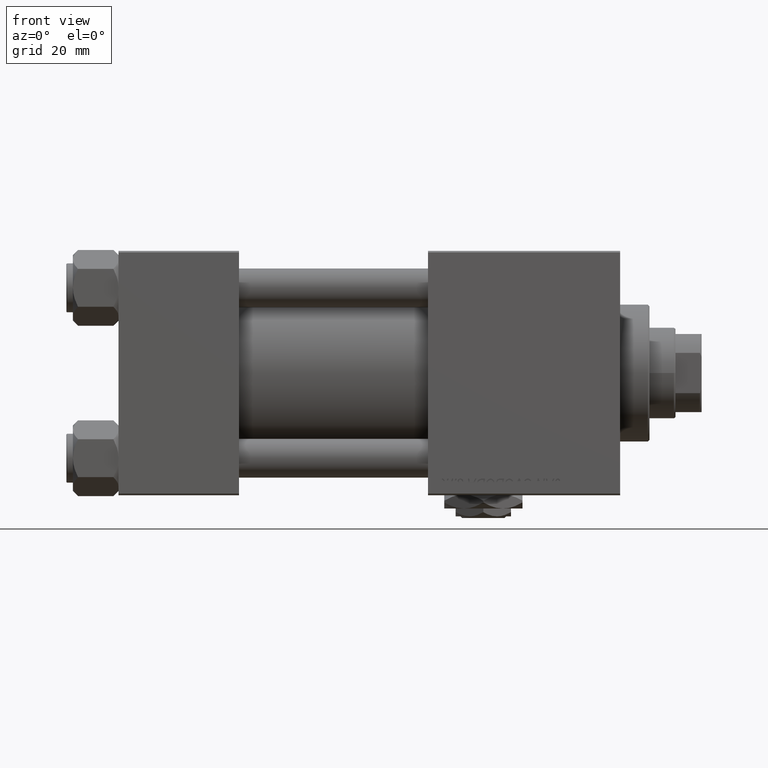
[diagram: clean part render]
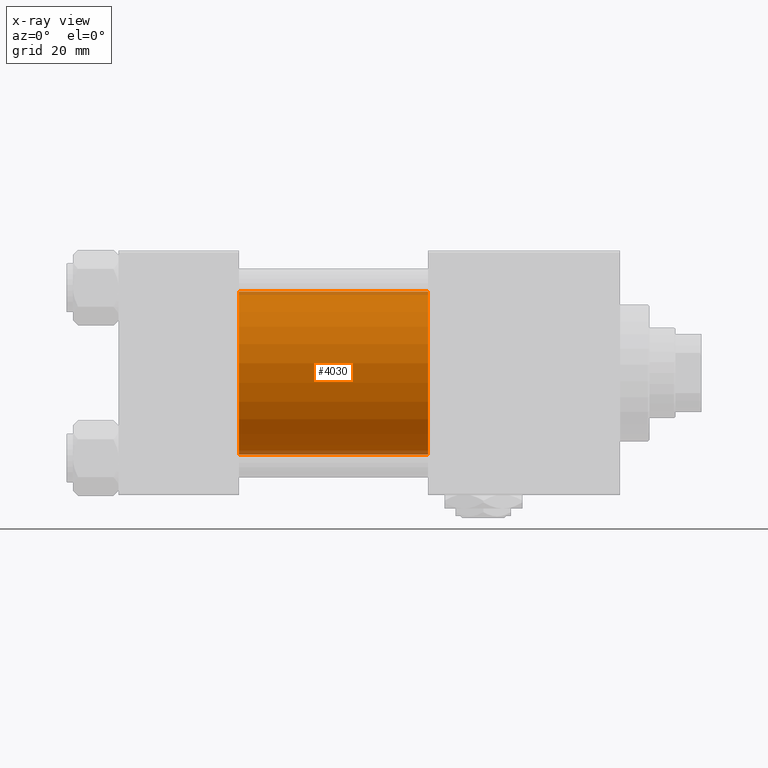
[diagram: x-ray — body ghosted, one internal face saturated and labeled with its STEP entity id]
A machine part, front view, then the same camera in x-ray: the body is ghosted and one INTERNAL B-rep face — a face not visible from any outside direction — is saturated and labeled: STEP entity #4030.
In plain terms, the highlighted cylindrical surface (partial cylindrical patch) has radius 25 mm, axis along (-1, -0, -0).
Its self-contained STEP definition (entity closure, byte-faithful):
#1020 = CARTESIAN_POINT ( 'NONE',  ( 95.00000000000000000, -2.602085213965210642E-15, 0.000000000000000000 ) ) ;
#1318 = DIRECTION ( 'NONE',  ( -1.000000000000000000, -0.000000000000000000, -0.000000000000000000 ) ) ;
#1733 = ORIENTED_EDGE ( 'NONE', *, *, #32622, .T. ) ;
#4030 = ADVANCED_FACE ( 'NONE', ( #48794 ), #17039, .F. ) ;
#4501 = VECTOR ( 'NONE', #27023, 1000.000000000000000 ) ;
#8416 = DIRECTION ( 'NONE',  ( 0.000000000000000000, 0.000000000000000000, -1.000000000000000000 ) ) ;
#8530 = EDGE_CURVE ( 'NONE', #40724, #27261, #9411, .T. ) ;
#8656 = DIRECTION ( 'NONE',  ( 0.000000000000000000, 0.000000000000000000, 1.000000000000000000 ) ) ;
#8707 = CARTESIAN_POINT ( 'NONE',  ( 95.00000000000000000, -2.602085213965210642E-15, 25.00000000000000000 ) ) ;
#9411 = CIRCLE ( 'NONE', #35378, 25.00000000000000000 ) ;
#13268 = VERTEX_POINT ( 'NONE', #8707 ) ;
#13609 = VERTEX_POINT ( 'NONE', #41117 ) ;
#15162 = CARTESIAN_POINT ( 'NONE',  ( 95.00000000000000000, -2.602085213965210642E-15, 25.00000000000000000 ) ) ;
#15291 = CARTESIAN_POINT ( 'NONE',  ( 37.00000000000000000, 4.595317839031718093E-16, -25.00000000000000000 ) ) ;
#17039 = CYLINDRICAL_SURFACE ( 'NONE', #34388, 25.00000000000000000 ) ;
#17266 = DIRECTION ( 'NONE',  ( 1.000000000000000000, 0.000000000000000000, 0.000000000000000000 ) ) ;
#18185 = CIRCLE ( 'NONE', #38312, 25.00000000000000000 ) ;
#22712 = ORIENTED_EDGE ( 'NONE', *, *, #22971, .T. ) ;
#22971 = EDGE_CURVE ( 'NONE', #13268, #13609, #18185, .T. ) ;
#23038 = LINE ( 'NONE', #15162, #31373 ) ;
#23193 = ORIENTED_EDGE ( 'NONE', *, *, #8530, .F. ) ;
#23345 = CARTESIAN_POINT ( 'NONE',  ( 95.00000000000000000, 4.595317839031718093E-16, -25.00000000000000000 ) ) ;
#27023 = DIRECTION ( 'NONE',  ( -1.000000000000000000, -0.000000000000000000, -0.000000000000000000 ) ) ;
#27261 = VERTEX_POINT ( 'NONE', #15291 ) ;
#31373 = VECTOR ( 'NONE', #35107, 1000.000000000000000 ) ;
#31940 = ORIENTED_EDGE ( 'NONE', *, *, #37772, .F. ) ;
#32622 = EDGE_CURVE ( 'NONE', #13609, #27261, #51696, .T. ) ;
#33580 = DIRECTION ( 'NONE',  ( 1.000000000000000000, 0.000000000000000000, 0.000000000000000000 ) ) ;
#34388 = AXIS2_PLACEMENT_3D ( 'NONE', #44870, #1318, #8656 ) ;
#35107 = DIRECTION ( 'NONE',  ( -1.000000000000000000, -0.000000000000000000, -0.000000000000000000 ) ) ;
#35378 = AXIS2_PLACEMENT_3D ( 'NONE', #37004, #33580, #8416 ) ;
#37004 = CARTESIAN_POINT ( 'NONE',  ( 37.00000000000000000, -2.602085213965210642E-15, 0.000000000000000000 ) ) ;
#37772 = EDGE_CURVE ( 'NONE', #13268, #40724, #23038, .T. ) ;
#38312 = AXIS2_PLACEMENT_3D ( 'NONE', #1020, #17266, #49287 ) ;
#40146 = CARTESIAN_POINT ( 'NONE',  ( 37.00000000000000000, -2.602085213965210642E-15, 25.00000000000000000 ) ) ;
#40724 = VERTEX_POINT ( 'NONE', #40146 ) ;
#41117 = CARTESIAN_POINT ( 'NONE',  ( 95.00000000000000000, 4.595317839031718093E-16, -25.00000000000000000 ) ) ;
#44870 = CARTESIAN_POINT ( 'NONE',  ( 95.00000000000000000, -2.602085213965210642E-15, 0.000000000000000000 ) ) ;
#48794 = FACE_OUTER_BOUND ( 'NONE', #51221, .T. ) ;
#49287 = DIRECTION ( 'NONE',  ( 0.000000000000000000, 0.000000000000000000, -1.000000000000000000 ) ) ;
#51221 = EDGE_LOOP ( 'NONE', ( #22712, #1733, #23193, #31940 ) ) ;
#51696 = LINE ( 'NONE', #23345, #4501 ) ;